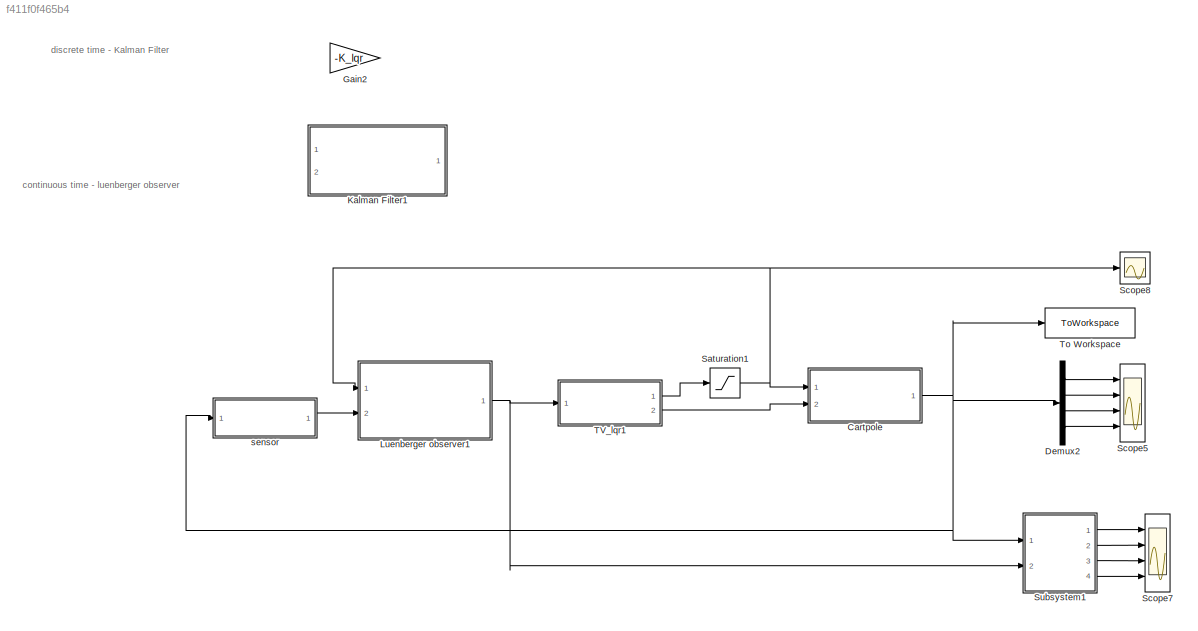
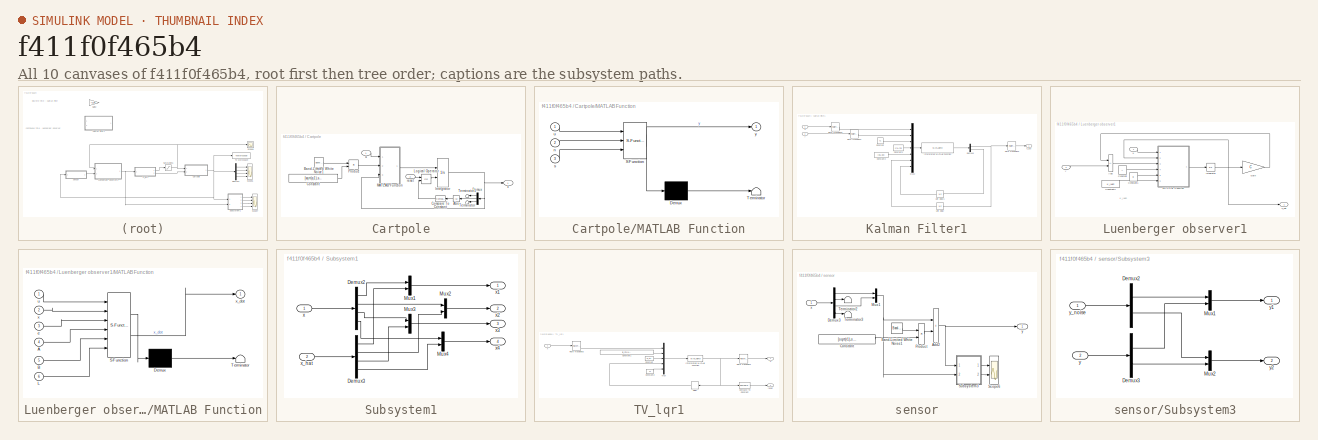
[diagram: thumbnail index - all 10 canvases of the model, root first then tree order]
MODEL slx_f411f0f465b4
KIND model
CONFIG AbsTol = auto
CONFIG EnableMultiTasking = off
CONFIG FixedStep = Tsim
CONFIG MaxStep = auto
CONFIG MinStep = auto
CONFIG RelTol = 1e-3
CONFIG SampleTimeConstraint = Unconstrained
CONFIG SolverName = FixedStepAuto
CONFIG StartTime = 0.0
CONFIG StopTime = T_end
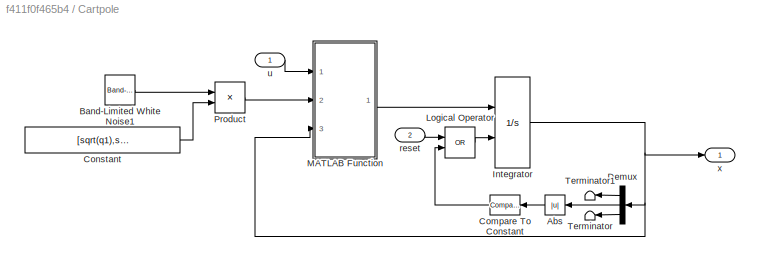
BLOCK [SubSystem] Cartpole
  Ports = [2, 1]
  RequestExecContextInheritance = off
BLOCK [Abs] Cartpole/Abs
  NameLocation = top
  SaturateOnIntegerOverflow = off
BLOCK [Reference] Cartpole/Band-Limited White Noise1  REF=simulink/Sources/Band-Limited
White Noise
  Ports = [0, 1]
  SourceBlock = simulink/Sources/Band-Limited\nWhite Noise
  SourceProductBaseCode = SL
  SourceType = Band-Limited White Noise.
BLOCK [Reference] Cartpole/Compare To Constant  REF=simulink/Logic and Bit
Operations/Compare
To Constant
  NameLocation = top
  Ports = [1, 1]
  SourceBlock = simulink/Logic and Bit\nOperations/Compare\nTo Constant
  SourceProductBaseCode = SL
  SourceType = Compare To Constant
BLOCK [Constant] Cartpole/Constant
  Value = [sqrt(q1),sqrt(q2)]
BLOCK [Demux] Cartpole/Demux
  NameLocation = top
  Outputs = [2,1,1]
  Ports = [1, 3]
BLOCK [Integrator] Cartpole/Integrator
  ExternalReset = rising
  InitialCondition = x0
  Ports = [2, 1]
BLOCK [Logic] Cartpole/Logical Operator
  AllPortsSameDT = off
  Operator = OR
  OutDataTypeStr = boolean
  Ports = [2, 1]
BLOCK [SubSystem] Cartpole/MATLAB Function
  ErrorFcn = Stateflow.Translate.translate
  PermitHierarchicalResolution = ExplicitOnly
  Ports = [3, 1]
  RequestExecContextInheritance = off
  SFBlockType = MATLAB Function
  TreatAsAtomicUnit = on
BLOCK [Demux] Cartpole/MATLAB Function/ Demux 
  Outputs = 1
  Ports = [1, 1]
BLOCK [S-Function] Cartpole/MATLAB Function/ SFunction 
  EnableBusSupport = on
  FunctionName = sf_sfun
  PortCounts = [3 2]
  Ports = [3, 2]
  SFcnIsStateOwnerBlock = off
  SFunctionDeploymentMode = off
  Tag = Stateflow S-Function 4
BLOCK [Terminator] Cartpole/MATLAB Function/ Terminator 
BLOCK [Inport] Cartpole/MATLAB Function/n
  Port = 2
BLOCK [Inport] Cartpole/MATLAB Function/s
  Port = 3
BLOCK [Inport] Cartpole/MATLAB Function/u
BLOCK [Outport] Cartpole/MATLAB Function/y
BLOCK [Product] Cartpole/Product
  Ports = [2, 1]
BLOCK [Terminator] Cartpole/Terminator
  NameLocation = top
BLOCK [Terminator] Cartpole/Terminator1
  NameLocation = top
BLOCK [Inport] Cartpole/reset
  Port = 2
BLOCK [Inport] Cartpole/u
BLOCK [Outport] Cartpole/x
BLOCK [Demux] Demux2
  Ports = [1, 4]
BLOCK [Gain] Gain2
  Commented = on
  Gain = -K_lqr
  Multiplication = Matrix(K*u)
BLOCK [SubSystem] Kalman Filter1
  Commented = on
  Ports = [2, 1]
  RequestExecContextInheritance = off
  SystemSampleTime = Ts
  TreatAsAtomicUnit = on
BLOCK [Constant] Kalman Filter1/Constant
  Value = Ts
BLOCK [Constant] Kalman Filter1/Constant1
  Value = [r1,r2]
BLOCK [Constant] Kalman Filter1/Constant2
  Value = [q1,q2]
BLOCK [Demux] Kalman Filter1/Demux5
  Outputs = [4, 16]
  Ports = [1, 2]
BLOCK [MATLABFcn] Kalman Filter1/Interpreted MATLAB Function
  MATLABFcn = cp_kalman
  OutputDimensions = 20
  Ports = [1, 1]
BLOCK [Mux] Kalman Filter1/Mux2
  DisplayOption = bar
  Inputs = 7
  Ports = [7, 1]
BLOCK [RateTransition] Kalman Filter1/Rate Transition1
  OutPortSampleTime = Ts
BLOCK [RateTransition] Kalman Filter1/Rate Transition2
BLOCK [RateTransition] Kalman Filter1/Rate Transition3
  OutPortSampleTime = Ts
BLOCK [UnitDelay] Kalman Filter1/Unit Delay
  HasFrameUpgradeWarning = on
  InitialCondition = x0
  SampleTime = -1
BLOCK [UnitDelay] Kalman Filter1/Unit Delay1
  HasFrameUpgradeWarning = on
  InitialCondition = reshape( P_k_init*eye(4),[16,1])
  SampleTime = -1
BLOCK [Inport] Kalman Filter1/u
BLOCK [Outport] Kalman Filter1/x_est
BLOCK [Inport] Kalman Filter1/y
  Port = 2
BLOCK [SubSystem] Luenberger observer1
  Ports = [2, 1]
  RequestExecContextInheritance = off
BLOCK [Sum] Luenberger observer1/Add
  IconShape = rectangular
  Inputs = -+
  Ports = [2, 1]
BLOCK [Constant] Luenberger observer1/Constant
  Value = A
BLOCK [Constant] Luenberger observer1/Constant1
  Value = B
BLOCK [Constant] Luenberger observer1/Constant2
  Value = K_luen'
BLOCK [Gain] Luenberger observer1/Gain
  Gain = C
  Multiplication = Matrix(K*u)
BLOCK [Integrator] Luenberger observer1/Integrator
  InitialCondition = [0,0,0,0]
  Ports = [1, 1]
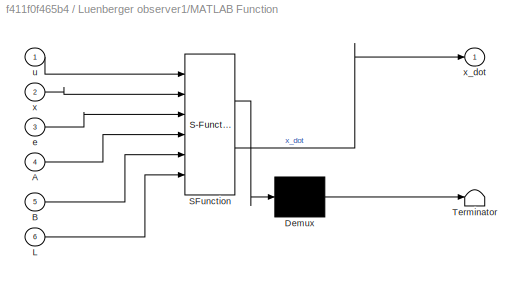
BLOCK [SubSystem] Luenberger observer1/MATLAB Function
  ErrorFcn = Stateflow.Translate.translate
  PermitHierarchicalResolution = ExplicitOnly
  Ports = [6, 1]
  RequestExecContextInheritance = off
  SFBlockType = MATLAB Function
  TreatAsAtomicUnit = on
BLOCK [Demux] Luenberger observer1/MATLAB Function/ Demux 
  Outputs = 1
  Ports = [1, 1]
BLOCK [S-Function] Luenberger observer1/MATLAB Function/ SFunction 
  EnableBusSupport = on
  FunctionName = sf_sfun
  PortCounts = [6 2]
  Ports = [6, 2]
  SFcnIsStateOwnerBlock = off
  SFunctionDeploymentMode = off
  Tag = Stateflow S-Function 2
BLOCK [Terminator] Luenberger observer1/MATLAB Function/ Terminator 
BLOCK [Inport] Luenberger observer1/MATLAB Function/A
  Port = 4
BLOCK [Inport] Luenberger observer1/MATLAB Function/B
  Port = 5
BLOCK [Inport] Luenberger observer1/MATLAB Function/L
  Port = 6
BLOCK [Inport] Luenberger observer1/MATLAB Function/e
  Port = 3
BLOCK [Inport] Luenberger observer1/MATLAB Function/u
BLOCK [Inport] Luenberger observer1/MATLAB Function/x
  Port = 2
BLOCK [Outport] Luenberger observer1/MATLAB Function/x_dot
BLOCK [Inport] Luenberger observer1/u
BLOCK [Outport] Luenberger observer1/x_hat
BLOCK [Inport] Luenberger observer1/y
  Port = 2
BLOCK [Saturate] Saturation1
  LowerLimit = -10
  UpperLimit = 10
BLOCK [Scope] Scope5
  Floating = off
  NumInputPorts = 4
  Ports = [4]
  ScopeSpecificationString = Simulink.scopes.TimeScopeBlockCfg('CurrentConfiguration', extmgr.ConfigurationSet(extmgr.Configuration('Core','General UI',true),extmgr.Configuration('Core','Source UI',true),extmgr.Configuration('Sources','WiredSimulink',true,'DataLoggingVariableName','ScopeData5'),extmgr.Configuration('Visuals','Time Domain',true,'SerializedDisplays',{struct('MinYLimReal','-0.03673','MaxYLimReal','0.33056','YLab...<+3400ch>
BLOCK [Scope] Scope7
  Floating = off
  NumInputPorts = 4
  Ports = [4]
  ScopeSpecificationString = Simulink.scopes.TimeScopeBlockCfg('CurrentConfiguration', extmgr.ConfigurationSet(extmgr.Configuration('Core','General UI',true),extmgr.Configuration('Core','Source UI',true),extmgr.Configuration('Sources','WiredSimulink',true,'DataLoggingVariableName','ScopeData7'),extmgr.Configuration('Visuals','Time Domain',true,'SerializedDisplays',{struct('MinYLimReal','-0.02738','MaxYLimReal','0.2464','YLabe...<+3536ch>
BLOCK [Scope] Scope8
  Floating = off
  NumInputPorts = 1
  Ports = [1]
  ScopeSpecificationString = Simulink.scopes.TimeScopeBlockCfg('CurrentConfiguration', extmgr.ConfigurationSet(extmgr.Configuration('Core','General UI',true),extmgr.Configuration('Core','Source UI',true),extmgr.Configuration('Sources','WiredSimulink',true,'DataLoggingVariableName','ScopeData8'),extmgr.Configuration('Visuals','Time Domain',true,'SerializedDisplays',{struct('MinYLimReal','-12.5','MaxYLimReal','12.5','YLabelReal...<+1424ch>
BLOCK [SubSystem] Subsystem1
  Ports = [2, 4]
  RequestExecContextInheritance = off
BLOCK [Demux] Subsystem1/Demux2
  Ports = [1, 4]
BLOCK [Demux] Subsystem1/Demux3
  Ports = [1, 4]
BLOCK [Mux] Subsystem1/Mux1
  DisplayOption = bar
  Inputs = 2
  Ports = [2, 1]
BLOCK [Mux] Subsystem1/Mux2
  DisplayOption = bar
  Inputs = 2
  Ports = [2, 1]
BLOCK [Mux] Subsystem1/Mux3
  DisplayOption = bar
  Inputs = 2
  Ports = [2, 1]
BLOCK [Mux] Subsystem1/Mux4
  DisplayOption = bar
  Inputs = 2
  Ports = [2, 1]
BLOCK [Inport] Subsystem1/x
BLOCK [Outport] Subsystem1/x1
BLOCK [Outport] Subsystem1/x2
  Port = 2
BLOCK [Outport] Subsystem1/x3
  Port = 3
BLOCK [Outport] Subsystem1/x4
  Port = 4
BLOCK [Inport] Subsystem1/x_hat
  Port = 2
BLOCK [SubSystem] TV_lqr1
  Ports = [1, 2]
  RequestExecContextInheritance = off
  SystemSampleTime = Ts
  TreatAsAtomicUnit = on
BLOCK [Reference] TV_lqr1/Compare To Constant  REF=simulink/Logic and Bit
Operations/Compare
To Constant
  Ports = [1, 1]
  SourceBlock = simulink/Logic and Bit\nOperations/Compare\nTo Constant
  SourceProductBaseCode = SL
  SourceType = Compare To Constant
BLOCK [Constant] TV_lqr1/Constant
  Value = R_ctrl
BLOCK [Constant] TV_lqr1/Constant1
  Value = [Q_ctrl(1,1),Q_ctrl(2,2),Q_ctrl(3,3),Q_ctrl(4,4)]
BLOCK [Constant] TV_lqr1/Constant2
  Value = Ts
BLOCK [Delay] TV_lqr1/Delay
  DelayLength = 1
  InitialCondition = 0
  InputPortMap = u0
  NameLocation = top
  Ports = [1, 1]
BLOCK [MATLABFcn] TV_lqr1/Interpreted MATLAB Function
  MATLABFcn = time_varying_LQR
  Ports = [1, 1]
BLOCK [Mux] TV_lqr1/Mux
  DisplayOption = bar
  Inputs = 5
  Ports = [5, 1]
BLOCK [RateTransition] TV_lqr1/Rate Transition2
BLOCK [RateTransition] TV_lqr1/Rate Transition3
  OutPortSampleTime = Ts
BLOCK [Outport] TV_lqr1/reset
  Port = 2
BLOCK [Outport] TV_lqr1/u
BLOCK [Inport] TV_lqr1/x
BLOCK [ToWorkspace] To Workspace
  FixptAsFi = on
  MaxDataPoints = inf
  Ports = [1]
  SampleTime = -1
  SaveFormat = Timeseries
  VariableName = simout
BLOCK [SubSystem] sensor
  Ports = [1, 1]
  RequestExecContextInheritance = off
BLOCK [Sum] sensor/Add2
  IconShape = rectangular
  Ports = [2, 1]
BLOCK [Reference] sensor/Band-Limited White Noise1  REF=simulink/Sources/Band-Limited
White Noise
  Ports = [0, 1]
  SourceBlock = simulink/Sources/Band-Limited\nWhite Noise
  SourceProductBaseCode = SL
  SourceType = Band-Limited White Noise.
BLOCK [Constant] sensor/Constant
  Value = [sqrt(r1),sqrt(r2)]
BLOCK [Demux] sensor/Demux3
  Ports = [1, 4]
BLOCK [Mux] sensor/Mux1
  DisplayOption = bar
  Inputs = 2
  Ports = [2, 1]
BLOCK [Product] sensor/Product
  Ports = [2, 1]
BLOCK [Scope] sensor/Scope6
  Floating = off
  NumInputPorts = 2
  Ports = [2]
  ScopeSpecificationString = Simulink.scopes.TimeScopeBlockCfg('CurrentConfiguration', extmgr.ConfigurationSet(extmgr.Configuration('Core','General UI',true),extmgr.Configuration('Core','Source UI',true),extmgr.Configuration('Sources','WiredSimulink',true,'DataLoggingVariableName','ScopeData6'),extmgr.Configuration('Visuals','Time Domain',true,'SerializedDisplays',{struct('MinYLimReal','-2.17904','MaxYLimReal','5.11524','YLab...<+2097ch>
BLOCK [SubSystem] sensor/Subsystem3
  Ports = [2, 2]
  RequestExecContextInheritance = off
BLOCK [Demux] sensor/Subsystem3/Demux2
  Outputs = 2
  Ports = [1, 2]
BLOCK [Demux] sensor/Subsystem3/Demux3
  Outputs = 2
  Ports = [1, 2]
BLOCK [Mux] sensor/Subsystem3/Mux1
  DisplayOption = bar
  Inputs = 2
  Ports = [2, 1]
BLOCK [Mux] sensor/Subsystem3/Mux2
  DisplayOption = bar
  Inputs = 2
  Ports = [2, 1]
BLOCK [Inport] sensor/Subsystem3/y
  Port = 2
BLOCK [Outport] sensor/Subsystem3/y1
BLOCK [Outport] sensor/Subsystem3/y2
  Port = 2
BLOCK [Inport] sensor/Subsystem3/y_noise
BLOCK [Terminator] sensor/Terminator2
BLOCK [Terminator] sensor/Terminator3
BLOCK [Inport] sensor/x
BLOCK [Outport] sensor/y
ANNOTATION (root): continuous time - luenberger observer
ANNOTATION (root): discrete time - Kalman Filter
ANNOTATION Luenberger observer1: K_luen
LINE Cartpole/Abs:1 -> Cartpole/Compare To Constant:1
LINE Cartpole/Band-Limited White Noise1:1 -> Cartpole/Product:1
LINE Cartpole/Compare To Constant:1 -> Cartpole/Logical Operator:2
LINE Cartpole/Constant:1 -> Cartpole/Product:2
LINE Cartpole/Demux:1 -> Cartpole/Terminator1:1
LINE Cartpole/Demux:2 -> Cartpole/Abs:1
LINE Cartpole/Demux:3 -> Cartpole/Terminator:1
NET Cartpole/Integrator:1 -> Cartpole/Demux:1, Cartpole/MATLAB Function:3, Cartpole/x:1
LINE Cartpole/Logical Operator:1 -> Cartpole/Integrator:2
LINE Cartpole/MATLAB Function:1 -> Cartpole/Integrator:1
LINE Cartpole/Product:1 -> Cartpole/MATLAB Function:2
LINE Cartpole/reset:1 -> Cartpole/Logical Operator:1
LINE Cartpole/u:1 -> Cartpole/MATLAB Function:1
NET Cartpole:1 -> Demux2:1, Subsystem1:1, To Workspace:1, sensor:1
LINE Demux2:1 -> Scope5:1
LINE Demux2:2 -> Scope5:2
LINE Demux2:3 -> Scope5:3
LINE Demux2:4 -> Scope5:4
LINE Kalman Filter1/Constant1:1 -> Kalman Filter1/Mux2:4
LINE Kalman Filter1/Constant2:1 -> Kalman Filter1/Mux2:5
LINE Kalman Filter1/Constant:1 -> Kalman Filter1/Mux2:3
NET Kalman Filter1/Demux5:1 -> Kalman Filter1/Rate Transition2:1, Kalman Filter1/Unit Delay:1
LINE Kalman Filter1/Demux5:2 -> Kalman Filter1/Unit Delay1:1
LINE Kalman Filter1/Interpreted MATLAB Function:1 -> Kalman Filter1/Demux5:1
LINE Kalman Filter1/Mux2:1 -> Kalman Filter1/Interpreted MATLAB Function:1
LINE Kalman Filter1/Rate Transition1:1 -> Kalman Filter1/Mux2:2
LINE Kalman Filter1/Rate Transition2:1 -> Kalman Filter1/x_est:1
LINE Kalman Filter1/Rate Transition3:1 -> Kalman Filter1/Mux2:1
LINE Kalman Filter1/Unit Delay1:1 -> Kalman Filter1/Mux2:7
LINE Kalman Filter1/Unit Delay:1 -> Kalman Filter1/Mux2:6
LINE Kalman Filter1/u:1 -> Kalman Filter1/Rate Transition3:1
LINE Kalman Filter1/y:1 -> Kalman Filter1/Rate Transition1:1
LINE Luenberger observer1/Add:1 -> Luenberger observer1/MATLAB Function:3
LINE Luenberger observer1/Constant1:1 -> Luenberger observer1/MATLAB Function:5
LINE Luenberger observer1/Constant2:1 -> Luenberger observer1/MATLAB Function:6
LINE Luenberger observer1/Constant:1 -> Luenberger observer1/MATLAB Function:4
LINE Luenberger observer1/Gain:1 -> Luenberger observer1/Add:1
NET Luenberger observer1/Integrator:1 -> Luenberger observer1/Gain:1, Luenberger observer1/MATLAB Function:2, Luenberger observer1/x_hat:1
LINE Luenberger observer1/MATLAB Function:1 -> Luenberger observer1/Integrator:1
LINE Luenberger observer1/u:1 -> Luenberger observer1/MATLAB Function:1
LINE Luenberger observer1/y:1 -> Luenberger observer1/Add:2
NET Luenberger observer1:1 -> Subsystem1:2, TV_lqr1:1
NET Saturation1:1 -> Cartpole:1, Luenberger observer1:1, Scope8:1
LINE Subsystem1/Demux2:1 -> Subsystem1/Mux1:1
LINE Subsystem1/Demux2:2 -> Subsystem1/Mux2:1
LINE Subsystem1/Demux2:3 -> Subsystem1/Mux3:1
LINE Subsystem1/Demux2:4 -> Subsystem1/Mux4:1
LINE Subsystem1/Demux3:1 -> Subsystem1/Mux1:2
LINE Subsystem1/Demux3:2 -> Subsystem1/Mux2:2
LINE Subsystem1/Demux3:3 -> Subsystem1/Mux3:2
LINE Subsystem1/Demux3:4 -> Subsystem1/Mux4:2
LINE Subsystem1/Mux1:1 -> Subsystem1/x1:1
LINE Subsystem1/Mux2:1 -> Subsystem1/x2:1
LINE Subsystem1/Mux3:1 -> Subsystem1/x3:1
LINE Subsystem1/Mux4:1 -> Subsystem1/x4:1
LINE Subsystem1/x:1 -> Subsystem1/Demux2:1
LINE Subsystem1/x_hat:1 -> Subsystem1/Demux3:1
LINE Subsystem1:1 -> Scope7:1
LINE Subsystem1:2 -> Scope7:2
LINE Subsystem1:3 -> Scope7:3
LINE Subsystem1:4 -> Scope7:4
LINE TV_lqr1/Compare To Constant:1 -> TV_lqr1/reset:1
LINE TV_lqr1/Constant1:1 -> TV_lqr1/Mux:2
LINE TV_lqr1/Constant2:1 -> TV_lqr1/Mux:5
LINE TV_lqr1/Constant:1 -> TV_lqr1/Mux:3
LINE TV_lqr1/Delay:1 -> TV_lqr1/Mux:4
NET TV_lqr1/Interpreted MATLAB Function:1 -> TV_lqr1/Compare To Constant:1, TV_lqr1/Delay:1, TV_lqr1/Rate Transition2:1
LINE TV_lqr1/Mux:1 -> TV_lqr1/Interpreted MATLAB Function:1
LINE TV_lqr1/Rate Transition2:1 -> TV_lqr1/u:1
LINE TV_lqr1/Rate Transition3:1 -> TV_lqr1/Mux:1
LINE TV_lqr1/x:1 -> TV_lqr1/Rate Transition3:1
LINE TV_lqr1:1 -> Saturation1:1
LINE TV_lqr1:2 -> Cartpole:2
NET sensor/Add2:1 -> sensor/Subsystem3:1, sensor/y:1
LINE sensor/Band-Limited White Noise1:1 -> sensor/Product:1
LINE sensor/Constant:1 -> sensor/Product:2
LINE sensor/Demux3:1 -> sensor/Mux1:1
LINE sensor/Demux3:2 -> sensor/Terminator2:1
LINE sensor/Demux3:3 -> sensor/Mux1:2
LINE sensor/Demux3:4 -> sensor/Terminator3:1
NET sensor/Mux1:1 -> sensor/Add2:1, sensor/Subsystem3:2
LINE sensor/Product:1 -> sensor/Add2:2
LINE sensor/Subsystem3/Demux2:1 -> sensor/Subsystem3/Mux1:1
LINE sensor/Subsystem3/Demux2:2 -> sensor/Subsystem3/Mux2:1
LINE sensor/Subsystem3/Demux3:1 -> sensor/Subsystem3/Mux1:2
LINE sensor/Subsystem3/Demux3:2 -> sensor/Subsystem3/Mux2:2
LINE sensor/Subsystem3/Mux1:1 -> sensor/Subsystem3/y1:1
LINE sensor/Subsystem3/Mux2:1 -> sensor/Subsystem3/y2:1
LINE sensor/Subsystem3/y:1 -> sensor/Subsystem3/Demux3:1
LINE sensor/Subsystem3/y_noise:1 -> sensor/Subsystem3/Demux2:1
LINE sensor/Subsystem3:1 -> sensor/Scope6:1
LINE sensor/Subsystem3:2 -> sensor/Scope6:2
LINE sensor/x:1 -> sensor/Demux3:1
LINE sensor:1 -> Luenberger observer1:2
note: NET lines group one-source signal fan-out (src -> all destinations, sorted); 1:1 wires keep LINE
CHART Luenberger observer1/MATLAB Function states=1 transitions=1
  STATE_LABEL 'eML_blk_kernel()'
  STATE_LABEL 'SCRIPT:\nfunction x_dot = fcn(u,x,e,A,B,L)\n\nx_dot = A*x + B*u + L*e;\n'
CHART Cartpole/MATLAB Function states=1 transitions=1
  STATE_LABEL 'eML_blk_kernel()'
  STATE_LABEL 'SCRIPT:\nfunction y = fcn(u,n,s)\n\ndot_x = s(2) ;\ntheta = s(3) ;\ndot_theta = s(4) ;\n\nm = 0.1;\nL = 1;\ng = 9.81;\nM = 1;\nd1 = 1;\nd2 = 0.5;\n\n\nx_ddot = u  + m*L*dot_theta^2 * sin(theta) - m*g*cos(theta) *  sin(theta) ;\nx_ddot = x_ddot / ( M+m-m* cos(theta)^2 )  + n(1) - d1*dot_x;\n\ntheta_ddot = (g*sin( theta ) -  cos( theta )*x_ddot ) / L  + n(2) - d2*dot_theta ;\n\n\ny = [ dot_x, x_ddot , dot_theta, theta_d...<+8ch>'
CHART  states=0 transitions=0
CHART  states=0 transitions=0
